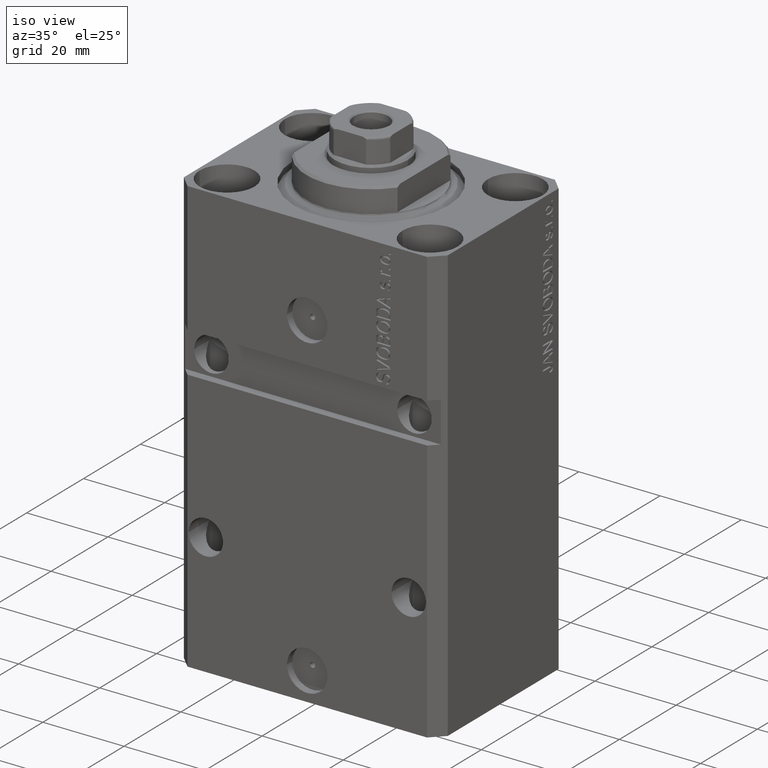
[diagram: clean part render]
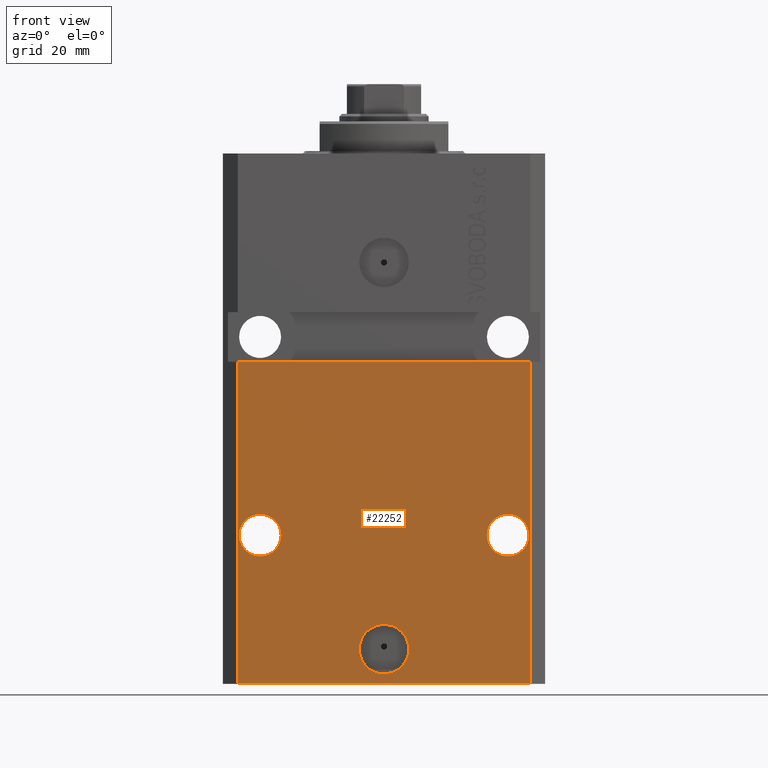
[diagram: tour spotlight — one face highlighted and labeled with its STEP entity id]
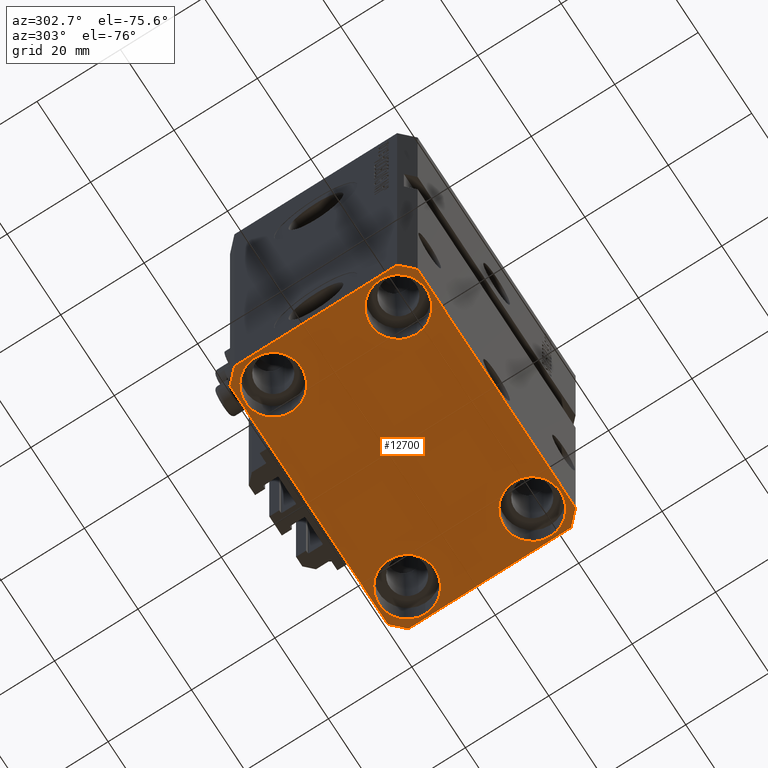
[diagram: tour spotlight — one face highlighted and labeled with its STEP entity id]
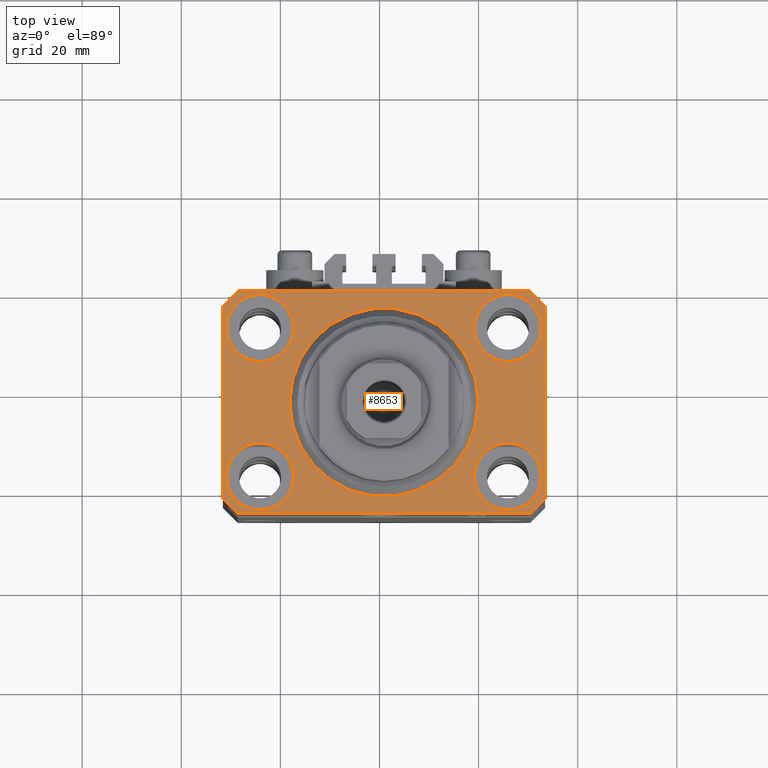
[diagram: tour spotlight — one face highlighted and labeled with its STEP entity id]
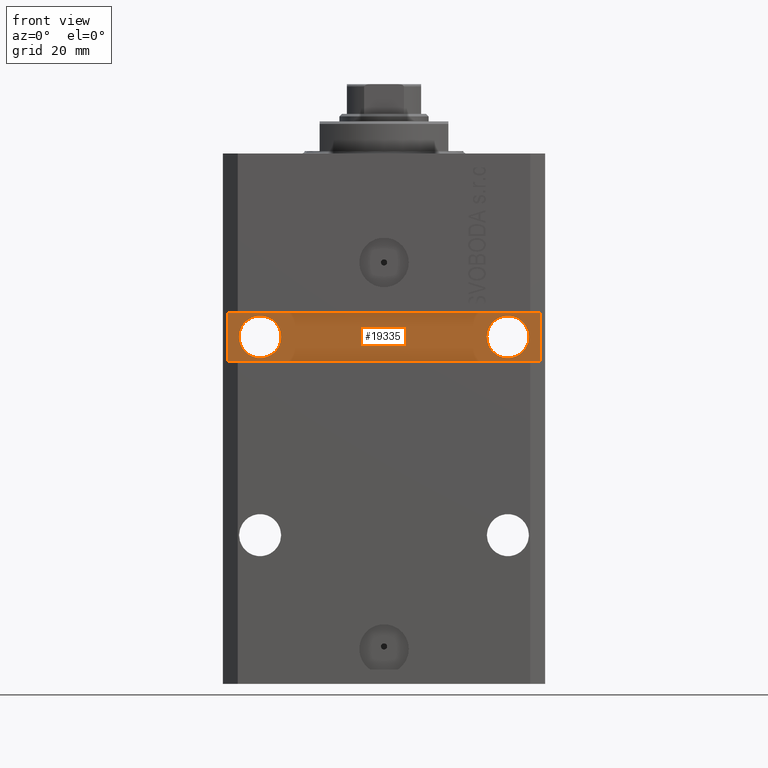
[diagram: tour spotlight — one face highlighted and labeled with its STEP entity id]
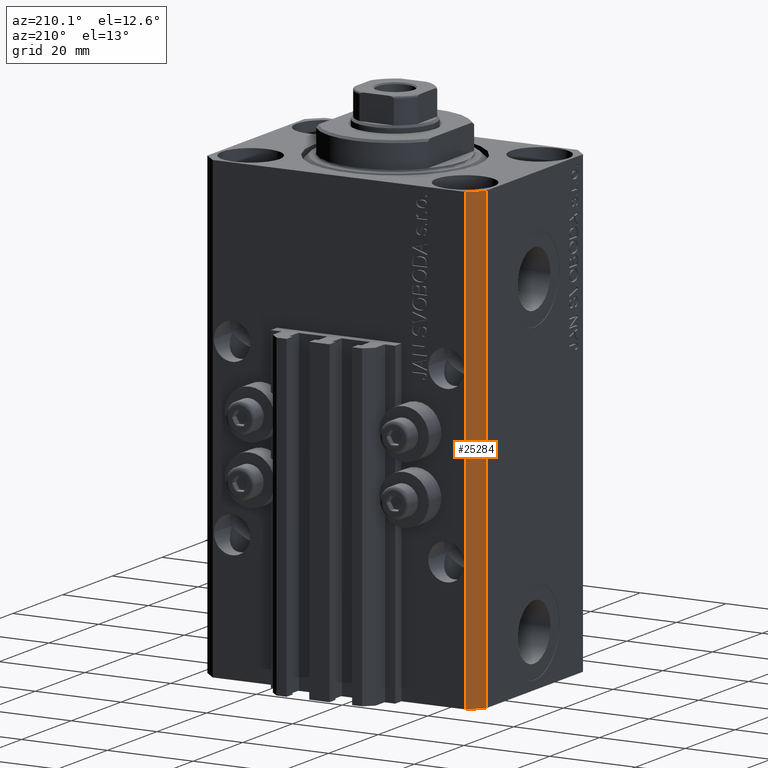
[diagram: tour spotlight — one face highlighted and labeled with its STEP entity id]
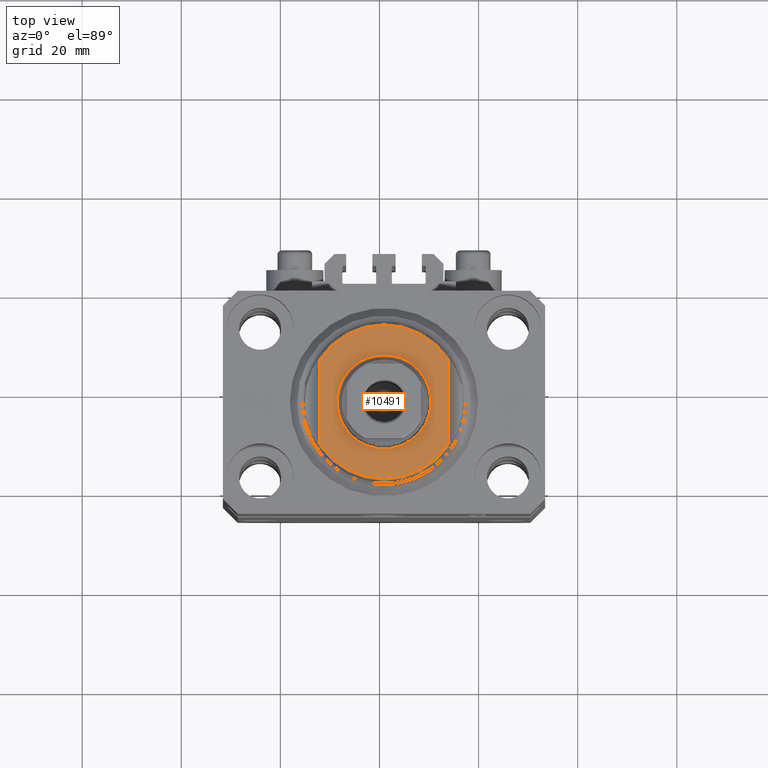
[diagram: tour spotlight — one face highlighted and labeled with its STEP entity id]
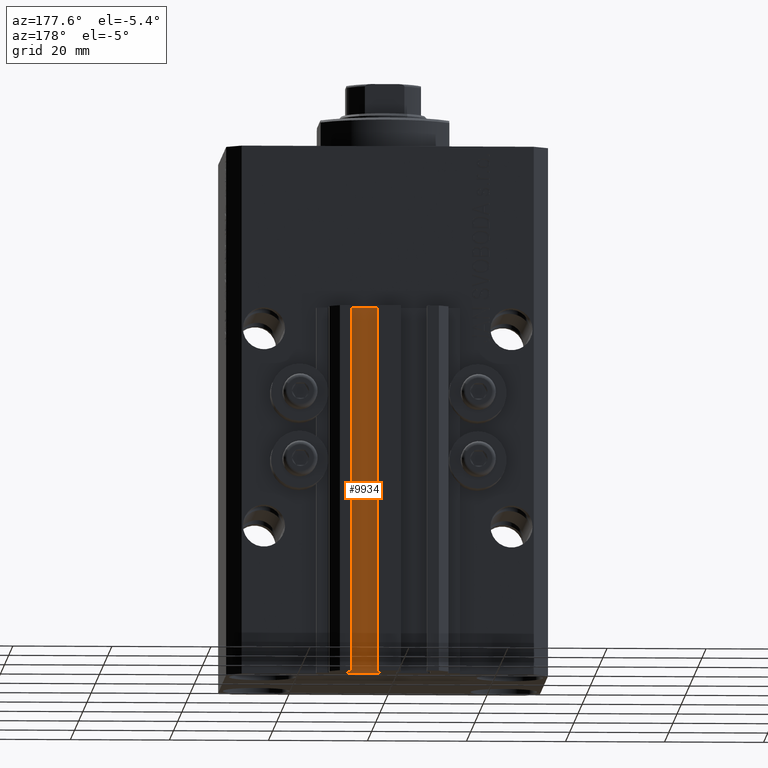
[diagram: tour spotlight — one face highlighted and labeled with its STEP entity id]
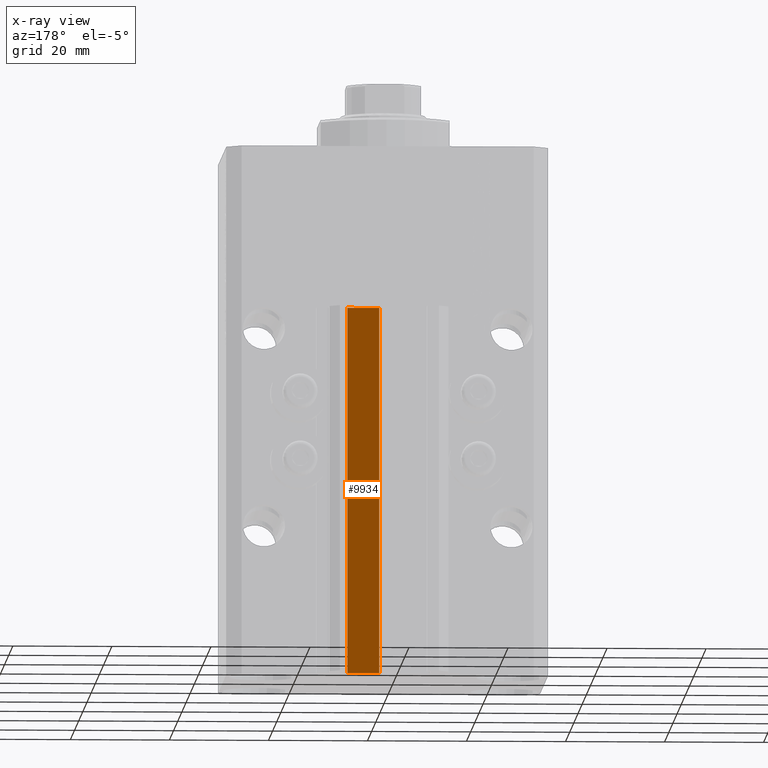
[diagram: x-ray of the same camera — body ghosted, this tour face saturated]
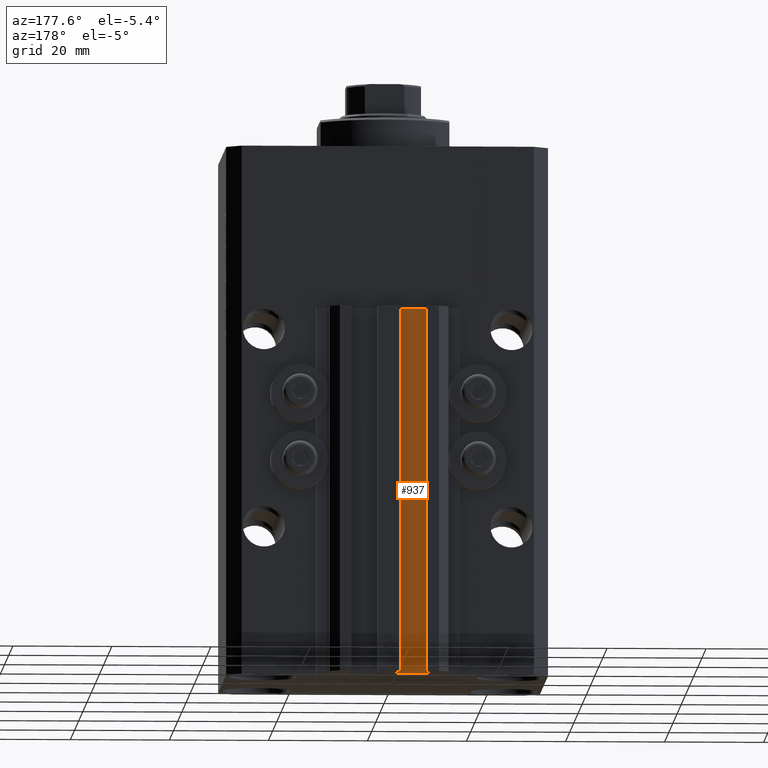
[diagram: tour spotlight — one face highlighted and labeled with its STEP entity id]
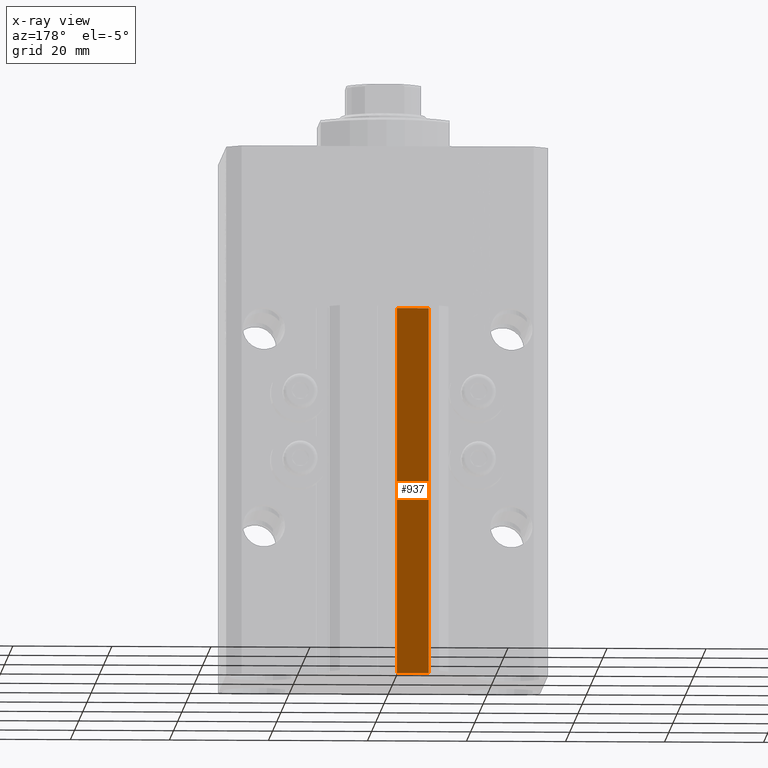
[diagram: x-ray of the same camera — body ghosted, this tour face saturated]
A machine part: a face-by-face anatomy tour. The part has 1087 B-rep faces; the first image is the clean iso view, then the 8 largest visible faces are spotlighted one at a time (largest first), each with its STEP entity span.

Face 1 — front view, entity #22252. In plain terms, the highlighted planar face has unit normal (0, -1, 0).
Definition (entity closure, byte-faithful):
#469 = AXIS2_PLACEMENT_3D ( 'NONE', #43234, #3431, #10939 ) ;
#1567 = ORIENTED_EDGE ( 'NONE', *, *, #16758, .F. ) ;
#2338 = CARTESIAN_POINT ( 'NONE',  ( 2.646188353185214061E-15, -22.49999999999949551, -99.99999999999998579 ) ) ;
#2385 = CARTESIAN_POINT ( 'NONE',  ( -29.49999999999650413, -22.49999999999949907, -107.0000000000000000 ) ) ;
#2760 = EDGE_CURVE ( 'NONE', #16689, #34827, #42251, .T. ) ;
#2822 = EDGE_CURVE ( 'NONE', #39694, #31487, #21983, .T. ) ;
#2955 = FACE_BOUND ( 'NONE', #31462, .T. ) ;
#3160 = CARTESIAN_POINT ( 'NONE',  ( -32.49999999999650413, -22.49999999999949907, -41.99999999999999289 ) ) ;
#3431 = DIRECTION ( 'NONE',  ( 1.176083712526788232E-16, -1.000000000000000000, 0.000000000000000000 ) ) ;
#3619 = VECTOR ( 'NONE', #38634, 1000.000000000000000 ) ;
#4930 = CIRCLE ( 'NONE', #17279, 5.000000000000006217 ) ;
#5645 = ORIENTED_EDGE ( 'NONE', *, *, #35060, .F. ) ;
#6008 = DIRECTION ( 'NONE',  ( -1.000000000000000000, 0.000000000000000000, 0.000000000000000000 ) ) ;
#6432 = VERTEX_POINT ( 'NONE', #8846 ) ;
#6451 = CARTESIAN_POINT ( 'NONE',  ( 5.000000000000008882, -22.49999999999949551, -99.99999999999998579 ) ) ;
#6483 = ORIENTED_EDGE ( 'NONE', *, *, #10278, .F. ) ;
#7294 = FACE_BOUND ( 'NONE', #28929, .T. ) ;
#7447 = CARTESIAN_POINT ( 'NONE',  ( 29.24999999998906475, -22.49999999999949196, -76.99999999999998579 ) ) ;
#7584 = DIRECTION ( 'NONE',  ( 0.000000000000000000, 0.000000000000000000, 1.000000000000000000 ) ) ;
#7728 = DIRECTION ( 'NONE',  ( 1.000000000000000000, 0.000000000000000000, 0.000000000000000000 ) ) ;
#7959 = CARTESIAN_POINT ( 'NONE',  ( 20.75000000001094946, -22.49999999999949196, -76.99999999999998579 ) ) ;
#8791 = ORIENTED_EDGE ( 'NONE', *, *, #14960, .F. ) ;
#8846 = CARTESIAN_POINT ( 'NONE',  ( -29.24999999997659472, -22.49999999999949907, -76.99999999999998579 ) ) ;
#9805 = VECTOR ( 'NONE', #14978, 1000.000000000000000 ) ;
#10069 = DIRECTION ( 'NONE',  ( 1.000000000000000000, 0.000000000000000000, 0.000000000000000000 ) ) ;
#10278 = EDGE_CURVE ( 'NONE', #35543, #20378, #4930, .T. ) ;
#10579 = AXIS2_PLACEMENT_3D ( 'NONE', #36361, #46736, #6008 ) ;
#10939 = DIRECTION ( 'NONE',  ( -1.000000000000000000, 0.000000000000000000, 0.000000000000000000 ) ) ;
#12299 = AXIS2_PLACEMENT_3D ( 'NONE', #25866, #33326, #39601 ) ;
#12751 = AXIS2_PLACEMENT_3D ( 'NONE', #2338, #45975, #10069 ) ;
#13405 = CARTESIAN_POINT ( 'NONE',  ( 29.49999999999650413, -22.49999999999949196, -107.0000000000000000 ) ) ;
#13423 = ORIENTED_EDGE ( 'NONE', *, *, #37572, .F. ) ;
#13825 = DIRECTION ( 'NONE',  ( 1.000000000000000000, 1.176083712526788232E-16, 0.000000000000000000 ) ) ;
#14288 = FACE_OUTER_BOUND ( 'NONE', #45470, .T. ) ;
#14960 = EDGE_CURVE ( 'NONE', #6432, #16162, #42051, .T. ) ;
#14978 = DIRECTION ( 'NONE',  ( 1.000000000000000000, 1.067522139062765303E-16, 1.067522139062765303E-16 ) ) ;
#15154 = LINE ( 'NONE', #16111, #37371 ) ;
#16019 = CARTESIAN_POINT ( 'NONE',  ( -29.49999999999650413, -22.49999999999949907, -107.0000000000000000 ) ) ;
#16039 = CARTESIAN_POINT ( 'NONE',  ( -20.75000000002340883, -22.49999999999949907, -76.99999999999998579 ) ) ;
#16111 = CARTESIAN_POINT ( 'NONE',  ( 29.49999999999650413, -22.49999999999949196, -107.0000000000000000 ) ) ;
#16162 = VERTEX_POINT ( 'NONE', #16039 ) ;
#16480 = VERTEX_POINT ( 'NONE', #7959 ) ;
#16503 = ORIENTED_EDGE ( 'NONE', *, *, #2760, .T. ) ;
#16689 = VERTEX_POINT ( 'NONE', #2385 ) ;
#16691 = CIRCLE ( 'NONE', #10579, 4.249999999976592058 ) ;
#16758 = EDGE_CURVE ( 'NONE', #16162, #6432, #16691, .T. ) ;
#17279 = AXIS2_PLACEMENT_3D ( 'NONE', #19061, #29657, #7728 ) ;
#17676 = DIRECTION ( 'NONE',  ( 1.176083712526788232E-16, -1.000000000000000000, 0.000000000000000000 ) ) ;
#18312 = ORIENTED_EDGE ( 'NONE', *, *, #2822, .F. ) ;
#18416 = AXIS2_PLACEMENT_3D ( 'NONE', #32120, #17676, #13825 ) ;
#19061 = CARTESIAN_POINT ( 'NONE',  ( 2.646188353185214061E-15, -22.49999999999949551, -99.99999999999998579 ) ) ;
#19664 = VERTEX_POINT ( 'NONE', #7447 ) ;
#19725 = DIRECTION ( 'NONE',  ( 0.000000000000000000, 0.000000000000000000, 1.000000000000000000 ) ) ;
#20378 = VERTEX_POINT ( 'NONE', #42083 ) ;
#20467 = CIRCLE ( 'NONE', #12751, 5.000000000000006217 ) ;
#21061 = FACE_BOUND ( 'NONE', #45485, .T. ) ;
#21983 = LINE ( 'NONE', #3160, #9805 ) ;
#22211 = CIRCLE ( 'NONE', #42222, 4.249999999989057642 ) ;
#22252 = ADVANCED_FACE ( 'NONE', ( #7294, #21061, #2955, #14288 ), #35747, .T. ) ;
#23177 = EDGE_CURVE ( 'NONE', #19664, #16480, #22211, .T. ) ;
#23941 = CARTESIAN_POINT ( 'NONE',  ( -29.49999999999650413, -22.49999999999949907, -107.0000000000000000 ) ) ;
#25866 = CARTESIAN_POINT ( 'NONE',  ( 25.00000000000000711, -22.49999999999949196, -76.99999999999998579 ) ) ;
#27183 = EDGE_CURVE ( 'NONE', #16480, #19664, #35376, .T. ) ;
#28833 = VECTOR ( 'NONE', #7584, 1000.000000000000000 ) ;
#28929 = EDGE_LOOP ( 'NONE', ( #6483, #13423 ) ) ;
#29657 = DIRECTION ( 'NONE',  ( 1.176083712526788232E-16, -1.000000000000000000, 0.000000000000000000 ) ) ;
#31462 = EDGE_LOOP ( 'NONE', ( #1567, #8791 ) ) ;
#31487 = VERTEX_POINT ( 'NONE', #32460 ) ;
#31955 = DIRECTION ( 'NONE',  ( 1.176083712526788232E-16, -1.000000000000000000, 0.000000000000000000 ) ) ;
#32106 = ORIENTED_EDGE ( 'NONE', *, *, #27183, .F. ) ;
#32120 = CARTESIAN_POINT ( 'NONE',  ( -29.49999999999650413, -22.49999999999949907, -107.0000000000000000 ) ) ;
#32460 = CARTESIAN_POINT ( 'NONE',  ( 29.49999999999650058, -22.49999999999949196, -41.99999999999998579 ) ) ;
#33326 = DIRECTION ( 'NONE',  ( 1.176083712526788232E-16, -1.000000000000000000, 0.000000000000000000 ) ) ;
#34827 = VERTEX_POINT ( 'NONE', #13405 ) ;
#35060 = EDGE_CURVE ( 'NONE', #16689, #39694, #37713, .T. ) ;
#35376 = CIRCLE ( 'NONE', #12299, 4.249999999989057642 ) ;
#35543 = VERTEX_POINT ( 'NONE', #6451 ) ;
#35747 = PLANE ( 'NONE',  #18416 ) ;
#36046 = DIRECTION ( 'NONE',  ( 1.000000000000000000, 0.000000000000000000, 0.000000000000000000 ) ) ;
#36361 = CARTESIAN_POINT ( 'NONE',  ( -25.00000000000000000, -22.49999999999949907, -76.99999999999998579 ) ) ;
#37188 = ORIENTED_EDGE ( 'NONE', *, *, #37413, .T. ) ;
#37371 = VECTOR ( 'NONE', #19725, 1000.000000000000000 ) ;
#37413 = EDGE_CURVE ( 'NONE', #34827, #31487, #15154, .T. ) ;
#37572 = EDGE_CURVE ( 'NONE', #20378, #35543, #20467, .T. ) ;
#37713 = LINE ( 'NONE', #16019, #28833 ) ;
#38634 = DIRECTION ( 'NONE',  ( 1.000000000000000000, 1.176083712526788232E-16, 0.000000000000000000 ) ) ;
#39601 = DIRECTION ( 'NONE',  ( 1.000000000000000000, 0.000000000000000000, 0.000000000000000000 ) ) ;
#39694 = VERTEX_POINT ( 'NONE', #44764 ) ;
#42051 = CIRCLE ( 'NONE', #469, 4.249999999976592058 ) ;
#42083 = CARTESIAN_POINT ( 'NONE',  ( -5.000000000000003553, -22.49999999999949551, -99.99999999999998579 ) ) ;
#42222 = AXIS2_PLACEMENT_3D ( 'NONE', #46202, #31955, #36046 ) ;
#42251 = LINE ( 'NONE', #23941, #3619 ) ;
#43234 = CARTESIAN_POINT ( 'NONE',  ( -25.00000000000000000, -22.49999999999949907, -76.99999999999998579 ) ) ;
#44764 = CARTESIAN_POINT ( 'NONE',  ( -29.49999999999650413, -22.49999999999949907, -41.99999999999999289 ) ) ;
#45470 = EDGE_LOOP ( 'NONE', ( #18312, #5645, #16503, #37188 ) ) ;
#45485 = EDGE_LOOP ( 'NONE', ( #47050, #32106 ) ) ;
#45975 = DIRECTION ( 'NONE',  ( 1.176083712526788232E-16, -1.000000000000000000, 0.000000000000000000 ) ) ;
#46202 = CARTESIAN_POINT ( 'NONE',  ( 25.00000000000000711, -22.49999999999949196, -76.99999999999998579 ) ) ;
#46736 = DIRECTION ( 'NONE',  ( 1.176083712526788232E-16, -1.000000000000000000, 0.000000000000000000 ) ) ;
#47050 = ORIENTED_EDGE ( 'NONE', *, *, #23177, .F. ) ;

Face 2 — auxiliary view, entity #12700. In plain terms, the highlighted planar face has unit normal (0, 0, 1).
Definition (entity closure, byte-faithful):
#403 = AXIS2_PLACEMENT_3D ( 'NONE', #33123, #39630, #3217 ) ;
#1221 = CARTESIAN_POINT ( 'NONE',  ( 29.49999999999707967, 22.49999999999951328, -107.0000000000000000 ) ) ;
#2344 = VERTEX_POINT ( 'NONE', #4003 ) ;
#2385 = CARTESIAN_POINT ( 'NONE',  ( -29.49999999999650413, -22.49999999999949907, -107.0000000000000000 ) ) ;
#2760 = EDGE_CURVE ( 'NONE', #16689, #34827, #42251, .T. ) ;
#3144 = CARTESIAN_POINT ( 'NONE',  ( 31.74999999995845101, 15.00000000000000888, -107.0000000000000000 ) ) ;
#3156 = ORIENTED_EDGE ( 'NONE', *, *, #2760, .F. ) ;
#3217 = DIRECTION ( 'NONE',  ( 1.000000000000000000, 0.000000000000000000, -0.000000000000000000 ) ) ;
#3227 = DIRECTION ( 'NONE',  ( 1.334402673828349134E-14, 1.000000000000000000, 0.000000000000000000 ) ) ;
#3427 = DIRECTION ( 'NONE',  ( 1.000000000000000000, 0.000000000000000000, 0.000000000000000000 ) ) ;
#3574 = ORIENTED_EDGE ( 'NONE', *, *, #4904, .T. ) ;
#3619 = VECTOR ( 'NONE', #38634, 1000.000000000000000 ) ;
#3725 = ORIENTED_EDGE ( 'NONE', *, *, #39978, .F. ) ;
#4003 = CARTESIAN_POINT ( 'NONE',  ( 31.74999999997746869, -15.00000000000000000, -107.0000000000000000 ) ) ;
#4022 = DIRECTION ( 'NONE',  ( -0.000000000000000000, -0.000000000000000000, 1.000000000000000000 ) ) ;
#4047 = DIRECTION ( 'NONE',  ( -0.000000000000000000, -0.000000000000000000, 1.000000000000000000 ) ) ;
#4431 = LINE ( 'NONE', #33851, #12990 ) ;
#4904 = EDGE_CURVE ( 'NONE', #24654, #7535, #36829, .T. ) ;
#5212 = AXIS2_PLACEMENT_3D ( 'NONE', #13570, #32588, #46828 ) ;
#5567 = LINE ( 'NONE', #1221, #16319 ) ;
#6077 = ORIENTED_EDGE ( 'NONE', *, *, #10646, .T. ) ;
#6161 = LINE ( 'NONE', #32159, #24419 ) ;
#6836 = FACE_BOUND ( 'NONE', #45916, .T. ) ;
#7012 = CIRCLE ( 'NONE', #33967, 6.750000000022533087 ) ;
#7319 = FACE_BOUND ( 'NONE', #41782, .T. ) ;
#7535 = VERTEX_POINT ( 'NONE', #24463 ) ;
#7599 = EDGE_CURVE ( 'NONE', #23980, #42069, #36509, .T. ) ;
#8478 = ORIENTED_EDGE ( 'NONE', *, *, #27210, .T. ) ;
#8597 = DIRECTION ( 'NONE',  ( 1.000000000000000000, 0.000000000000000000, 0.000000000000000000 ) ) ;
#8884 = DIRECTION ( 'NONE',  ( 1.000000000000000000, 0.000000000000000000, 0.000000000000000000 ) ) ;
#9198 = DIRECTION ( 'NONE',  ( -1.000000000000000000, -2.352167425053553784E-16, 0.000000000000000000 ) ) ;
#9343 = CIRCLE ( 'NONE', #40878, 6.750000000022533087 ) ;
#9541 = ORIENTED_EDGE ( 'NONE', *, *, #11482, .F. ) ;
#10060 = ORIENTED_EDGE ( 'NONE', *, *, #44376, .F. ) ;
#10245 = FACE_BOUND ( 'NONE', #32015, .T. ) ;
#10580 = DIRECTION ( 'NONE',  ( 1.000000000000000000, 0.000000000000000000, 0.000000000000000000 ) ) ;
#10646 = EDGE_CURVE ( 'NONE', #25746, #2344, #30357, .T. ) ;
#10751 = DIRECTION ( 'NONE',  ( 1.000000000000000000, 0.000000000000000000, 0.000000000000000000 ) ) ;
#10820 = CARTESIAN_POINT ( 'NONE',  ( -31.75000000004154899, -15.00000000000000000, -107.0000000000000000 ) ) ;
#10872 = ORIENTED_EDGE ( 'NONE', *, *, #47503, .T. ) ;
#11178 = VECTOR ( 'NONE', #18883, 1000.000000000000000 ) ;
#11267 = CARTESIAN_POINT ( 'NONE',  ( 32.49999999999702993, 19.49999999999945999, -107.0000000000000000 ) ) ;
#11412 = DIRECTION ( 'NONE',  ( -0.000000000000000000, -0.000000000000000000, 1.000000000000000000 ) ) ;
#11482 = EDGE_CURVE ( 'NONE', #34827, #13408, #13893, .T. ) ;
#11710 = EDGE_LOOP ( 'NONE', ( #39499, #3574 ) ) ;
#12700 = ADVANCED_FACE ( 'NONE', ( #6836, #7319, #22041, #10245, #28770 ), #24931, .F. ) ;
#12742 = CARTESIAN_POINT ( 'NONE',  ( -25.00000000000000355, 15.00000000000000000, -107.0000000000000000 ) ) ;
#12990 = VECTOR ( 'NONE', #22769, 1000.000000000000114 ) ;
#13405 = CARTESIAN_POINT ( 'NONE',  ( 29.49999999999650413, -22.49999999999949196, -107.0000000000000000 ) ) ;
#13408 = VERTEX_POINT ( 'NONE', #36022 ) ;
#13570 = CARTESIAN_POINT ( 'NONE',  ( 24.99999999999999645, 15.00000000000000888, -107.0000000000000000 ) ) ;
#13627 = CARTESIAN_POINT ( 'NONE',  ( 25.00000000000000355, -15.00000000000000000, -107.0000000000000000 ) ) ;
#13893 = LINE ( 'NONE', #29970, #11178 ) ;
#14182 = ORIENTED_EDGE ( 'NONE', *, *, #30199, .T. ) ;
#15600 = DIRECTION ( 'NONE',  ( 1.000000000000000000, 0.000000000000000000, 0.000000000000000000 ) ) ;
#15739 = CARTESIAN_POINT ( 'NONE',  ( 29.49999999999707967, 22.49999999999951328, -107.0000000000000000 ) ) ;
#15968 = ORIENTED_EDGE ( 'NONE', *, *, #32437, .F. ) ;
#16319 = VECTOR ( 'NONE', #9198, 1000.000000000000000 ) ;
#16689 = VERTEX_POINT ( 'NONE', #2385 ) ;
#16781 = CARTESIAN_POINT ( 'NONE',  ( -29.49999999999650413, 22.49999999999949907, -107.0000000000000000 ) ) ;
#16838 = AXIS2_PLACEMENT_3D ( 'NONE', #13627, #32168, #10751 ) ;
#17531 = CARTESIAN_POINT ( 'NONE',  ( -18.24999999997747224, 15.00000000000000000, -107.0000000000000000 ) ) ;
#18883 = DIRECTION ( 'NONE',  ( 0.7071067811865483499, 0.7071067811865466846, 0.000000000000000000 ) ) ;
#19171 = AXIS2_PLACEMENT_3D ( 'NONE', #25964, #4022, #15600 ) ;
#20628 = LINE ( 'NONE', #46410, #44016 ) ;
#21525 = ORIENTED_EDGE ( 'NONE', *, *, #7599, .T. ) ;
#22017 = CARTESIAN_POINT ( 'NONE',  ( -32.49999999999650413, -19.49999999999949907, -107.0000000000000000 ) ) ;
#22041 = FACE_BOUND ( 'NONE', #11710, .T. ) ;
#22618 = EDGE_LOOP ( 'NONE', ( #15968, #31025, #47282, #9541, #3156, #10060, #3725, #27645 ) ) ;
#22769 = DIRECTION ( 'NONE',  ( 0.7071067811865474617, -0.7071067811865474617, 0.000000000000000000 ) ) ;
#23941 = CARTESIAN_POINT ( 'NONE',  ( -29.49999999999650413, -22.49999999999949907, -107.0000000000000000 ) ) ;
#23980 = VERTEX_POINT ( 'NONE', #31733 ) ;
#24419 = VECTOR ( 'NONE', #46644, 1000.000000000000000 ) ;
#24435 = VERTEX_POINT ( 'NONE', #15739 ) ;
#24457 = CIRCLE ( 'NONE', #5212, 6.749999999958452790 ) ;
#24463 = CARTESIAN_POINT ( 'NONE',  ( 18.25000000004154543, 15.00000000000000888, -107.0000000000000000 ) ) ;
#24608 = CARTESIAN_POINT ( 'NONE',  ( -29.49999999999650413, 22.49999999999949907, -107.0000000000000000 ) ) ;
#24654 = VERTEX_POINT ( 'NONE', #3144 ) ;
#24743 = VECTOR ( 'NONE', #3227, 1000.000000000000000 ) ;
#24931 = PLANE ( 'NONE',  #403 ) ;
#25104 = EDGE_CURVE ( 'NONE', #30262, #33387, #28908, .T. ) ;
#25407 = DIRECTION ( 'NONE',  ( -0.000000000000000000, -0.000000000000000000, 1.000000000000000000 ) ) ;
#25746 = VERTEX_POINT ( 'NONE', #26862 ) ;
#25964 = CARTESIAN_POINT ( 'NONE',  ( 24.99999999999999645, 15.00000000000000888, -107.0000000000000000 ) ) ;
#26098 = VECTOR ( 'NONE', #42678, 1000.000000000000114 ) ;
#26862 = CARTESIAN_POINT ( 'NONE',  ( 18.25000000002253842, -15.00000000000000000, -107.0000000000000000 ) ) ;
#27210 = EDGE_CURVE ( 'NONE', #42069, #23980, #33067, .T. ) ;
#27645 = ORIENTED_EDGE ( 'NONE', *, *, #25104, .F. ) ;
#27683 = DIRECTION ( 'NONE',  ( -0.000000000000000000, -0.000000000000000000, 1.000000000000000000 ) ) ;
#28770 = FACE_OUTER_BOUND ( 'NONE', #22618, .T. ) ;
#28908 = LINE ( 'NONE', #24608, #26098 ) ;
#29215 = AXIS2_PLACEMENT_3D ( 'NONE', #44428, #11412, #3427 ) ;
#29599 = CARTESIAN_POINT ( 'NONE',  ( 25.00000000000000355, -15.00000000000000000, -107.0000000000000000 ) ) ;
#29952 = EDGE_CURVE ( 'NONE', #36678, #35270, #9343, .T. ) ;
#29970 = CARTESIAN_POINT ( 'NONE',  ( 29.49999999999650413, -22.49999999999949196, -107.0000000000000000 ) ) ;
#30199 = EDGE_CURVE ( 'NONE', #35270, #36678, #7012, .T. ) ;
#30262 = VERTEX_POINT ( 'NONE', #16781 ) ;
#30357 = CIRCLE ( 'NONE', #31110, 6.749999999977465137 ) ;
#30810 = EDGE_CURVE ( 'NONE', #13408, #31643, #36258, .T. ) ;
#30844 = EDGE_CURVE ( 'NONE', #31643, #24435, #20628, .T. ) ;
#31025 = ORIENTED_EDGE ( 'NONE', *, *, #30844, .F. ) ;
#31110 = AXIS2_PLACEMENT_3D ( 'NONE', #29599, #4047, #10580 ) ;
#31447 = CARTESIAN_POINT ( 'NONE',  ( -25.00000000000000355, -15.00000000000000000, -107.0000000000000000 ) ) ;
#31643 = VERTEX_POINT ( 'NONE', #11267 ) ;
#31733 = CARTESIAN_POINT ( 'NONE',  ( -18.24999999995845812, -15.00000000000000000, -107.0000000000000000 ) ) ;
#31926 = DIRECTION ( 'NONE',  ( -0.7071067811865352493, 0.7071067811865597852, 0.000000000000000000 ) ) ;
#32015 = EDGE_LOOP ( 'NONE', ( #14182, #41913 ) ) ;
#32159 = CARTESIAN_POINT ( 'NONE',  ( -32.49999999999650413, 19.49999999999949907, -107.0000000000000000 ) ) ;
#32168 = DIRECTION ( 'NONE',  ( -0.000000000000000000, -0.000000000000000000, 1.000000000000000000 ) ) ;
#32437 = EDGE_CURVE ( 'NONE', #24435, #30262, #5567, .T. ) ;
#32588 = DIRECTION ( 'NONE',  ( -0.000000000000000000, -0.000000000000000000, 1.000000000000000000 ) ) ;
#33067 = CIRCLE ( 'NONE', #29215, 6.750000000041541881 ) ;
#33123 = CARTESIAN_POINT ( 'NONE',  ( 0.000000000000000000, 0.000000000000000000, -107.0000000000000000 ) ) ;
#33387 = VERTEX_POINT ( 'NONE', #34505 ) ;
#33851 = CARTESIAN_POINT ( 'NONE',  ( -32.49999999999650413, -19.49999999999949907, -107.0000000000000000 ) ) ;
#33967 = AXIS2_PLACEMENT_3D ( 'NONE', #45703, #45945, #8597 ) ;
#34505 = CARTESIAN_POINT ( 'NONE',  ( -32.49999999999650413, 19.49999999999949907, -107.0000000000000000 ) ) ;
#34827 = VERTEX_POINT ( 'NONE', #13405 ) ;
#35270 = VERTEX_POINT ( 'NONE', #38429 ) ;
#36022 = CARTESIAN_POINT ( 'NONE',  ( 32.49999999999651124, -19.49999999999949196, -107.0000000000000000 ) ) ;
#36209 = VERTEX_POINT ( 'NONE', #22017 ) ;
#36258 = LINE ( 'NONE', #39640, #24743 ) ;
#36509 = CIRCLE ( 'NONE', #44236, 6.750000000041541881 ) ;
#36678 = VERTEX_POINT ( 'NONE', #17531 ) ;
#36829 = CIRCLE ( 'NONE', #19171, 6.749999999958452790 ) ;
#37619 = CIRCLE ( 'NONE', #16838, 6.749999999977465137 ) ;
#38429 = CARTESIAN_POINT ( 'NONE',  ( -31.75000000002253842, 15.00000000000000000, -107.0000000000000000 ) ) ;
#38634 = DIRECTION ( 'NONE',  ( 1.000000000000000000, 1.176083712526788232E-16, 0.000000000000000000 ) ) ;
#39499 = ORIENTED_EDGE ( 'NONE', *, *, #41397, .T. ) ;
#39630 = DIRECTION ( 'NONE',  ( 0.000000000000000000, 0.000000000000000000, 1.000000000000000000 ) ) ;
#39640 = CARTESIAN_POINT ( 'NONE',  ( 32.49999999999651124, -19.49999999999949196, -107.0000000000000000 ) ) ;
#39978 = EDGE_CURVE ( 'NONE', #33387, #36209, #6161, .T. ) ;
#40336 = DIRECTION ( 'NONE',  ( 1.000000000000000000, 0.000000000000000000, 0.000000000000000000 ) ) ;
#40878 = AXIS2_PLACEMENT_3D ( 'NONE', #12742, #27683, #8884 ) ;
#41397 = EDGE_CURVE ( 'NONE', #7535, #24654, #24457, .T. ) ;
#41782 = EDGE_LOOP ( 'NONE', ( #6077, #10872 ) ) ;
#41913 = ORIENTED_EDGE ( 'NONE', *, *, #29952, .T. ) ;
#42069 = VERTEX_POINT ( 'NONE', #10820 ) ;
#42251 = LINE ( 'NONE', #23941, #3619 ) ;
#42678 = DIRECTION ( 'NONE',  ( -0.7071067811865474617, -0.7071067811865474617, 0.000000000000000000 ) ) ;
#44016 = VECTOR ( 'NONE', #31926, 1000.000000000000000 ) ;
#44236 = AXIS2_PLACEMENT_3D ( 'NONE', #31447, #25407, #40336 ) ;
#44376 = EDGE_CURVE ( 'NONE', #36209, #16689, #4431, .T. ) ;
#44428 = CARTESIAN_POINT ( 'NONE',  ( -25.00000000000000355, -15.00000000000000000, -107.0000000000000000 ) ) ;
#45703 = CARTESIAN_POINT ( 'NONE',  ( -25.00000000000000355, 15.00000000000000000, -107.0000000000000000 ) ) ;
#45916 = EDGE_LOOP ( 'NONE', ( #8478, #21525 ) ) ;
#45945 = DIRECTION ( 'NONE',  ( -0.000000000000000000, -0.000000000000000000, 1.000000000000000000 ) ) ;
#46410 = CARTESIAN_POINT ( 'NONE',  ( 32.49999999999702993, 19.49999999999945999, -107.0000000000000000 ) ) ;
#46644 = DIRECTION ( 'NONE',  ( 0.000000000000000000, -1.000000000000000000, 0.000000000000000000 ) ) ;
#46828 = DIRECTION ( 'NONE',  ( 1.000000000000000000, 0.000000000000000000, 0.000000000000000000 ) ) ;
#47282 = ORIENTED_EDGE ( 'NONE', *, *, #30810, .F. ) ;
#47503 = EDGE_CURVE ( 'NONE', #2344, #25746, #37619, .T. ) ;

Face 3 — top view, entity #8653. In plain terms, the highlighted planar face has unit normal (0, 0, 1).
Definition (entity closure, byte-faithful):
#773 = DIRECTION ( 'NONE',  ( 1.000000000000000000, 1.176083712526788232E-16, 0.000000000000000000 ) ) ;
#1098 = DIRECTION ( 'NONE',  ( 1.000000000000000000, 0.000000000000000000, 0.000000000000000000 ) ) ;
#1394 = VECTOR ( 'NONE', #31495, 1000.000000000000114 ) ;
#1618 = CARTESIAN_POINT ( 'NONE',  ( 32.49999999999651124, -19.49999999999949196, 0.000000000000000000 ) ) ;
#1797 = EDGE_CURVE ( 'NONE', #47575, #35236, #45173, .T. ) ;
#1819 = FACE_BOUND ( 'NONE', #28076, .T. ) ;
#2060 = DIRECTION ( 'NONE',  ( 0.000000000000000000, 0.000000000000000000, 1.000000000000000000 ) ) ;
#2248 = DIRECTION ( 'NONE',  ( 0.000000000000000000, 0.000000000000000000, 1.000000000000000000 ) ) ;
#2536 = CARTESIAN_POINT ( 'NONE',  ( 18.25000000004154543, 15.00000000000000888, 0.000000000000000000 ) ) ;
#2618 = ORIENTED_EDGE ( 'NONE', *, *, #23161, .T. ) ;
#3082 = CIRCLE ( 'NONE', #36188, 6.750000000022533087 ) ;
#3206 = DIRECTION ( 'NONE',  ( 0.000000000000000000, 0.000000000000000000, 1.000000000000000000 ) ) ;
#3694 = CARTESIAN_POINT ( 'NONE',  ( -19.00000000000000000, 2.326828918379970970E-15, 0.000000000000000000 ) ) ;
#4236 = AXIS2_PLACEMENT_3D ( 'NONE', #41632, #2060, #31008 ) ;
#4932 = DIRECTION ( 'NONE',  ( 0.000000000000000000, 0.000000000000000000, 1.000000000000000000 ) ) ;
#5349 = VERTEX_POINT ( 'NONE', #8170 ) ;
#5561 = DIRECTION ( 'NONE',  ( 0.000000000000000000, 0.000000000000000000, 1.000000000000000000 ) ) ;
#6630 = LINE ( 'NONE', #16791, #1394 ) ;
#7001 = CARTESIAN_POINT ( 'NONE',  ( -25.00000000000000355, 15.00000000000000000, 0.000000000000000000 ) ) ;
#7526 = LINE ( 'NONE', #45128, #46858 ) ;
#7741 = AXIS2_PLACEMENT_3D ( 'NONE', #42451, #5561, #34734 ) ;
#8170 = CARTESIAN_POINT ( 'NONE',  ( -31.75000000002253842, 15.00000000000000000, 0.000000000000000000 ) ) ;
#8653 = ADVANCED_FACE ( 'NONE', ( #12690, #1819, #23317, #19702, #45486, #16318 ), #46431, .T. ) ;
#9174 = ORIENTED_EDGE ( 'NONE', *, *, #16052, .T. ) ;
#9573 = ORIENTED_EDGE ( 'NONE', *, *, #27481, .F. ) ;
#9757 = VECTOR ( 'NONE', #28082, 1000.000000000000000 ) ;
#9807 = EDGE_CURVE ( 'NONE', #45161, #28462, #41877, .T. ) ;
#9935 = CIRCLE ( 'NONE', #12243, 6.749999999958452790 ) ;
#10248 = CARTESIAN_POINT ( 'NONE',  ( 19.00000000000000000, 0.000000000000000000, 0.000000000000000000 ) ) ;
#10288 = LINE ( 'NONE', #38974, #32822 ) ;
#11190 = DIRECTION ( 'NONE',  ( 1.000000000000000000, 0.000000000000000000, 0.000000000000000000 ) ) ;
#11309 = LINE ( 'NONE', #18536, #31139 ) ;
#12115 = EDGE_CURVE ( 'NONE', #12219, #20772, #11309, .T. ) ;
#12219 = VERTEX_POINT ( 'NONE', #1618 ) ;
#12229 = CARTESIAN_POINT ( 'NONE',  ( -32.49999999999650413, 19.49999999999949907, 0.000000000000000000 ) ) ;
#12243 = AXIS2_PLACEMENT_3D ( 'NONE', #19692, #20168, #13400 ) ;
#12493 = AXIS2_PLACEMENT_3D ( 'NONE', #26910, #41130, #33420 ) ;
#12546 = DIRECTION ( 'NONE',  ( 1.000000000000000000, 0.000000000000000000, 0.000000000000000000 ) ) ;
#12690 = FACE_BOUND ( 'NONE', #41562, .T. ) ;
#12883 = VERTEX_POINT ( 'NONE', #18778 ) ;
#13163 = LINE ( 'NONE', #13391, #9757 ) ;
#13391 = CARTESIAN_POINT ( 'NONE',  ( 29.49999999999707967, 22.49999999999951328, 0.000000000000000000 ) ) ;
#13400 = DIRECTION ( 'NONE',  ( 1.000000000000000000, 0.000000000000000000, 0.000000000000000000 ) ) ;
#14070 = CARTESIAN_POINT ( 'NONE',  ( 24.99999999999999645, 15.00000000000000888, 0.000000000000000000 ) ) ;
#14537 = VECTOR ( 'NONE', #36742, 1000.000000000000000 ) ;
#14715 = CARTESIAN_POINT ( 'NONE',  ( -29.49999999999650413, 22.49999999999949907, 0.000000000000000000 ) ) ;
#14742 = ORIENTED_EDGE ( 'NONE', *, *, #29430, .F. ) ;
#14868 = CARTESIAN_POINT ( 'NONE',  ( -18.24999999995846167, -15.00000000000000000, 0.000000000000000000 ) ) ;
#14908 = ORIENTED_EDGE ( 'NONE', *, *, #17265, .F. ) ;
#16052 = EDGE_CURVE ( 'NONE', #23451, #29365, #10288, .T. ) ;
#16257 = CARTESIAN_POINT ( 'NONE',  ( 31.74999999995845101, 15.00000000000000888, 0.000000000000000000 ) ) ;
#16318 = FACE_OUTER_BOUND ( 'NONE', #45473, .T. ) ;
#16732 = CIRCLE ( 'NONE', #19797, 6.750000000041541881 ) ;
#16791 = CARTESIAN_POINT ( 'NONE',  ( -29.49999999999650413, 22.49999999999949907, 0.000000000000000000 ) ) ;
#17265 = EDGE_CURVE ( 'NONE', #26287, #46442, #16732, .T. ) ;
#17395 = ORIENTED_EDGE ( 'NONE', *, *, #39797, .T. ) ;
#18264 = ORIENTED_EDGE ( 'NONE', *, *, #12115, .T. ) ;
#18283 = CIRCLE ( 'NONE', #33667, 6.749999999977465137 ) ;
#18536 = CARTESIAN_POINT ( 'NONE',  ( 32.49999999999651124, -19.49999999999949196, 0.000000000000000000 ) ) ;
#18745 = DIRECTION ( 'NONE',  ( 0.000000000000000000, -1.000000000000000000, 0.000000000000000000 ) ) ;
#18778 = CARTESIAN_POINT ( 'NONE',  ( -18.24999999997747224, 15.00000000000000000, 0.000000000000000000 ) ) ;
#18821 = LINE ( 'NONE', #21494, #19939 ) ;
#19189 = VERTEX_POINT ( 'NONE', #40310 ) ;
#19297 = ORIENTED_EDGE ( 'NONE', *, *, #41283, .F. ) ;
#19562 = ORIENTED_EDGE ( 'NONE', *, *, #47383, .F. ) ;
#19692 = CARTESIAN_POINT ( 'NONE',  ( 24.99999999999999645, 15.00000000000000888, 0.000000000000000000 ) ) ;
#19702 = FACE_BOUND ( 'NONE', #34003, .T. ) ;
#19797 = AXIS2_PLACEMENT_3D ( 'NONE', #23879, #41713, #12546 ) ;
#19803 = EDGE_LOOP ( 'NONE', ( #14742, #40212 ) ) ;
#19939 = VECTOR ( 'NONE', #40045, 1000.000000000000000 ) ;
#20168 = DIRECTION ( 'NONE',  ( 0.000000000000000000, 0.000000000000000000, 1.000000000000000000 ) ) ;
#20338 = CARTESIAN_POINT ( 'NONE',  ( 25.00000000000000355, -15.00000000000000000, 0.000000000000000000 ) ) ;
#20772 = VERTEX_POINT ( 'NONE', #37825 ) ;
#21493 = EDGE_CURVE ( 'NONE', #29365, #43868, #7526, .T. ) ;
#21494 = CARTESIAN_POINT ( 'NONE',  ( 32.49999999999702993, 19.49999999999945999, 0.000000000000000000 ) ) ;
#21945 = ORIENTED_EDGE ( 'NONE', *, *, #37011, .F. ) ;
#22197 = DIRECTION ( 'NONE',  ( 0.000000000000000000, 0.000000000000000000, 1.000000000000000000 ) ) ;
#22946 = ORIENTED_EDGE ( 'NONE', *, *, #33934, .F. ) ;
#23161 = EDGE_CURVE ( 'NONE', #41864, #19189, #6630, .T. ) ;
#23194 = CARTESIAN_POINT ( 'NONE',  ( -29.49999999999650413, -22.49999999999949907, 0.000000000000000000 ) ) ;
#23317 = FACE_BOUND ( 'NONE', #31554, .T. ) ;
#23451 = VERTEX_POINT ( 'NONE', #32366 ) ;
#23879 = CARTESIAN_POINT ( 'NONE',  ( -25.00000000000000355, -15.00000000000000000, 0.000000000000000000 ) ) ;
#23917 = CARTESIAN_POINT ( 'NONE',  ( 31.74999999997746869, -15.00000000000000000, 0.000000000000000000 ) ) ;
#23960 = ORIENTED_EDGE ( 'NONE', *, *, #21493, .T. ) ;
#23981 = DIRECTION ( 'NONE',  ( 1.000000000000000000, 0.000000000000000000, 0.000000000000000000 ) ) ;
#24019 = DIRECTION ( 'NONE',  ( 0.000000000000000000, 0.000000000000000000, 1.000000000000000000 ) ) ;
#24674 = EDGE_CURVE ( 'NONE', #20772, #35414, #18821, .T. ) ;
#25524 = DIRECTION ( 'NONE',  ( 1.334402673828349134E-14, 1.000000000000000000, 0.000000000000000000 ) ) ;
#26287 = VERTEX_POINT ( 'NONE', #28857 ) ;
#26621 = CARTESIAN_POINT ( 'NONE',  ( 29.49999999999650413, -22.49999999999949196, 0.000000000000000000 ) ) ;
#26701 = ORIENTED_EDGE ( 'NONE', *, *, #31754, .F. ) ;
#26910 = CARTESIAN_POINT ( 'NONE',  ( -25.00000000000000355, -15.00000000000000000, 0.000000000000000000 ) ) ;
#26924 = LINE ( 'NONE', #12229, #37148 ) ;
#27242 = ORIENTED_EDGE ( 'NONE', *, *, #24674, .T. ) ;
#27368 = VERTEX_POINT ( 'NONE', #23917 ) ;
#27481 = EDGE_CURVE ( 'NONE', #12883, #5349, #3082, .T. ) ;
#27803 = DIRECTION ( 'NONE',  ( 1.000000000000000000, 0.000000000000000000, 0.000000000000000000 ) ) ;
#28076 = EDGE_LOOP ( 'NONE', ( #21945, #19297 ) ) ;
#28082 = DIRECTION ( 'NONE',  ( -1.000000000000000000, -2.352167425053553784E-16, 0.000000000000000000 ) ) ;
#28462 = VERTEX_POINT ( 'NONE', #10248 ) ;
#28521 = CIRCLE ( 'NONE', #7741, 19.00000000000000000 ) ;
#28857 = CARTESIAN_POINT ( 'NONE',  ( -31.75000000004154899, -15.00000000000000000, 0.000000000000000000 ) ) ;
#29000 = DIRECTION ( 'NONE',  ( 1.000000000000000000, 0.000000000000000000, 0.000000000000000000 ) ) ;
#29365 = VERTEX_POINT ( 'NONE', #23194 ) ;
#29430 = EDGE_CURVE ( 'NONE', #28462, #45161, #28521, .T. ) ;
#31008 = DIRECTION ( 'NONE',  ( 1.000000000000000000, 0.000000000000000000, -0.000000000000000000 ) ) ;
#31139 = VECTOR ( 'NONE', #25524, 1000.000000000000000 ) ;
#31222 = CIRCLE ( 'NONE', #34328, 6.749999999977465137 ) ;
#31495 = DIRECTION ( 'NONE',  ( -0.7071067811865474617, -0.7071067811865474617, 0.000000000000000000 ) ) ;
#31554 = EDGE_LOOP ( 'NONE', ( #19562, #33781 ) ) ;
#31754 = EDGE_CURVE ( 'NONE', #5349, #12883, #41674, .T. ) ;
#31965 = AXIS2_PLACEMENT_3D ( 'NONE', #35048, #4932, #23981 ) ;
#32366 = CARTESIAN_POINT ( 'NONE',  ( -32.49999999999650413, -19.49999999999949907, 0.000000000000000000 ) ) ;
#32429 = DIRECTION ( 'NONE',  ( 0.7071067811865474617, -0.7071067811865474617, 0.000000000000000000 ) ) ;
#32784 = DIRECTION ( 'NONE',  ( 1.000000000000000000, 0.000000000000000000, 0.000000000000000000 ) ) ;
#32822 = VECTOR ( 'NONE', #32429, 1000.000000000000114 ) ;
#33274 = CIRCLE ( 'NONE', #12493, 6.750000000041541881 ) ;
#33420 = DIRECTION ( 'NONE',  ( 1.000000000000000000, 0.000000000000000000, 0.000000000000000000 ) ) ;
#33471 = CARTESIAN_POINT ( 'NONE',  ( 29.49999999999650413, -22.49999999999949196, 0.000000000000000000 ) ) ;
#33667 = AXIS2_PLACEMENT_3D ( 'NONE', #20338, #2248, #27803 ) ;
#33781 = ORIENTED_EDGE ( 'NONE', *, *, #1797, .F. ) ;
#33825 = CARTESIAN_POINT ( 'NONE',  ( 18.25000000002253842, -15.00000000000000000, 0.000000000000000000 ) ) ;
#33934 = EDGE_CURVE ( 'NONE', #46442, #26287, #33274, .T. ) ;
#34003 = EDGE_LOOP ( 'NONE', ( #9573, #26701 ) ) ;
#34328 = AXIS2_PLACEMENT_3D ( 'NONE', #47571, #3206, #29000 ) ;
#34699 = EDGE_CURVE ( 'NONE', #19189, #23451, #26924, .T. ) ;
#34734 = DIRECTION ( 'NONE',  ( 1.000000000000000000, 0.000000000000000000, 0.000000000000000000 ) ) ;
#35048 = CARTESIAN_POINT ( 'NONE',  ( 0.000000000000000000, 0.000000000000000000, 0.000000000000000000 ) ) ;
#35236 = VERTEX_POINT ( 'NONE', #16257 ) ;
#35414 = VERTEX_POINT ( 'NONE', #41028 ) ;
#36188 = AXIS2_PLACEMENT_3D ( 'NONE', #7001, #22197, #32784 ) ;
#36475 = DIRECTION ( 'NONE',  ( 0.000000000000000000, 0.000000000000000000, 1.000000000000000000 ) ) ;
#36742 = DIRECTION ( 'NONE',  ( 0.7071067811865483499, 0.7071067811865466846, 0.000000000000000000 ) ) ;
#37011 = EDGE_CURVE ( 'NONE', #27368, #42454, #31222, .T. ) ;
#37148 = VECTOR ( 'NONE', #18745, 1000.000000000000000 ) ;
#37825 = CARTESIAN_POINT ( 'NONE',  ( 32.49999999999702993, 19.49999999999945999, 0.000000000000000000 ) ) ;
#38482 = CARTESIAN_POINT ( 'NONE',  ( -25.00000000000000355, 15.00000000000000000, 0.000000000000000000 ) ) ;
#38974 = CARTESIAN_POINT ( 'NONE',  ( -32.49999999999650413, -19.49999999999949907, 0.000000000000000000 ) ) ;
#39258 = ORIENTED_EDGE ( 'NONE', *, *, #47653, .T. ) ;
#39797 = EDGE_CURVE ( 'NONE', #35414, #41864, #13163, .T. ) ;
#40045 = DIRECTION ( 'NONE',  ( -0.7071067811865352493, 0.7071067811865597852, 0.000000000000000000 ) ) ;
#40212 = ORIENTED_EDGE ( 'NONE', *, *, #9807, .F. ) ;
#40310 = CARTESIAN_POINT ( 'NONE',  ( -32.49999999999650413, 19.49999999999949907, 0.000000000000000000 ) ) ;
#41028 = CARTESIAN_POINT ( 'NONE',  ( 29.49999999999707967, 22.49999999999951328, 0.000000000000000000 ) ) ;
#41130 = DIRECTION ( 'NONE',  ( 0.000000000000000000, 0.000000000000000000, 1.000000000000000000 ) ) ;
#41283 = EDGE_CURVE ( 'NONE', #42454, #27368, #18283, .T. ) ;
#41562 = EDGE_LOOP ( 'NONE', ( #22946, #14908 ) ) ;
#41632 = CARTESIAN_POINT ( 'NONE',  ( 0.000000000000000000, 0.000000000000000000, 0.000000000000000000 ) ) ;
#41674 = CIRCLE ( 'NONE', #42469, 6.750000000022533087 ) ;
#41713 = DIRECTION ( 'NONE',  ( 0.000000000000000000, 0.000000000000000000, 1.000000000000000000 ) ) ;
#41864 = VERTEX_POINT ( 'NONE', #14715 ) ;
#41877 = CIRCLE ( 'NONE', #31965, 19.00000000000000000 ) ;
#42451 = CARTESIAN_POINT ( 'NONE',  ( 0.000000000000000000, 0.000000000000000000, 0.000000000000000000 ) ) ;
#42454 = VERTEX_POINT ( 'NONE', #33825 ) ;
#42469 = AXIS2_PLACEMENT_3D ( 'NONE', #38482, #24019, #1098 ) ;
#43123 = ORIENTED_EDGE ( 'NONE', *, *, #34699, .T. ) ;
#43868 = VERTEX_POINT ( 'NONE', #33471 ) ;
#44951 = LINE ( 'NONE', #26621, #14537 ) ;
#45128 = CARTESIAN_POINT ( 'NONE',  ( -29.49999999999650413, -22.49999999999949907, 0.000000000000000000 ) ) ;
#45161 = VERTEX_POINT ( 'NONE', #3694 ) ;
#45173 = CIRCLE ( 'NONE', #47459, 6.749999999958452790 ) ;
#45473 = EDGE_LOOP ( 'NONE', ( #17395, #2618, #43123, #9174, #23960, #39258, #18264, #27242 ) ) ;
#45486 = FACE_BOUND ( 'NONE', #19803, .T. ) ;
#46431 = PLANE ( 'NONE',  #4236 ) ;
#46442 = VERTEX_POINT ( 'NONE', #14868 ) ;
#46858 = VECTOR ( 'NONE', #773, 1000.000000000000000 ) ;
#47383 = EDGE_CURVE ( 'NONE', #35236, #47575, #9935, .T. ) ;
#47459 = AXIS2_PLACEMENT_3D ( 'NONE', #14070, #36475, #11190 ) ;
#47571 = CARTESIAN_POINT ( 'NONE',  ( 25.00000000000000355, -15.00000000000000000, 0.000000000000000000 ) ) ;
#47575 = VERTEX_POINT ( 'NONE', #2536 ) ;
#47653 = EDGE_CURVE ( 'NONE', #43868, #12219, #44951, .T. ) ;

Face 4 — front view, entity #19335. In plain terms, the highlighted planar face has unit normal (0, -1, 0).
Definition (entity closure, byte-faithful):
#2032 = CARTESIAN_POINT ( 'NONE',  ( 25.00000000000000711, -20.49999999999949551, -36.99999999999999289 ) ) ;
#2401 = EDGE_LOOP ( 'NONE', ( #21513, #15186 ) ) ;
#2875 = CARTESIAN_POINT ( 'NONE',  ( 32.49999999999650413, -20.49999999999949196, -32.00000000000000711 ) ) ;
#3727 = CARTESIAN_POINT ( 'NONE',  ( 29.24999999998905764, -20.49999999999949551, -36.99999999999999289 ) ) ;
#5336 = AXIS2_PLACEMENT_3D ( 'NONE', #43701, #25143, #40324 ) ;
#5800 = DIRECTION ( 'NONE',  ( -1.000000000000000000, -1.067522139062765303E-16, 1.067522139062765303E-16 ) ) ;
#6170 = VECTOR ( 'NONE', #24709, 1000.000000000000000 ) ;
#6372 = VERTEX_POINT ( 'NONE', #16332 ) ;
#6441 = CARTESIAN_POINT ( 'NONE',  ( -32.49999999999650413, -20.49999999999949907, -41.99999999999999289 ) ) ;
#6609 = CARTESIAN_POINT ( 'NONE',  ( 31.49999999999650413, -20.49999999999949196, -41.99999999999998579 ) ) ;
#7426 = AXIS2_PLACEMENT_3D ( 'NONE', #21606, #25688, #17972 ) ;
#7614 = ORIENTED_EDGE ( 'NONE', *, *, #26322, .F. ) ;
#9667 = LINE ( 'NONE', #2875, #19492 ) ;
#10377 = FACE_OUTER_BOUND ( 'NONE', #17750, .T. ) ;
#10666 = ORIENTED_EDGE ( 'NONE', *, *, #34284, .T. ) ;
#10736 = ORIENTED_EDGE ( 'NONE', *, *, #22227, .F. ) ;
#11656 = DIRECTION ( 'NONE',  ( 1.000000000000000000, 0.000000000000000000, 0.000000000000000000 ) ) ;
#12598 = EDGE_CURVE ( 'NONE', #20505, #20779, #41982, .T. ) ;
#13234 = LINE ( 'NONE', #21175, #17647 ) ;
#13464 = CARTESIAN_POINT ( 'NONE',  ( -31.49999999999650413, -20.49999999999949907, -41.99999999999999289 ) ) ;
#14461 = DIRECTION ( 'NONE',  ( 1.067522139062765303E-16, -1.000000000000000000, 0.000000000000000000 ) ) ;
#15186 = ORIENTED_EDGE ( 'NONE', *, *, #16100, .F. ) ;
#16044 = CIRCLE ( 'NONE', #42981, 4.249999999993782751 ) ;
#16100 = EDGE_CURVE ( 'NONE', #46545, #37615, #22075, .T. ) ;
#16248 = ORIENTED_EDGE ( 'NONE', *, *, #34432, .T. ) ;
#16332 = CARTESIAN_POINT ( 'NONE',  ( -31.49999999999650413, -20.49999999999950262, -32.00000000000000000 ) ) ;
#17647 = VECTOR ( 'NONE', #34503, 1000.000000000000000 ) ;
#17750 = EDGE_LOOP ( 'NONE', ( #10666, #24219, #16248, #7614 ) ) ;
#17972 = DIRECTION ( 'NONE',  ( 1.000000000000000000, 0.000000000000000000, 0.000000000000000000 ) ) ;
#19335 = ADVANCED_FACE ( 'NONE', ( #22179, #47730, #10377 ), #25790, .T. ) ;
#19492 = VECTOR ( 'NONE', #5800, 1000.000000000000000 ) ;
#19515 = CARTESIAN_POINT ( 'NONE',  ( 20.75000000001095657, -20.49999999999949551, -36.99999999999999289 ) ) ;
#20326 = CARTESIAN_POINT ( 'NONE',  ( -29.24999999999377920, -20.49999999999950262, -37.00000000000000000 ) ) ;
#20505 = VERTEX_POINT ( 'NONE', #3727 ) ;
#20779 = VERTEX_POINT ( 'NONE', #19515 ) ;
#21175 = CARTESIAN_POINT ( 'NONE',  ( 31.49999999999651124, -20.49999999999949551, -107.0000000000000000 ) ) ;
#21327 = LINE ( 'NONE', #29017, #6170 ) ;
#21513 = ORIENTED_EDGE ( 'NONE', *, *, #24293, .F. ) ;
#21606 = CARTESIAN_POINT ( 'NONE',  ( -24.99999999999999289, -20.49999999999950262, -37.00000000000000000 ) ) ;
#22075 = CIRCLE ( 'NONE', #7426, 4.249999999993782751 ) ;
#22179 = FACE_BOUND ( 'NONE', #25777, .T. ) ;
#22227 = EDGE_CURVE ( 'NONE', #20779, #20505, #26882, .T. ) ;
#23760 = DIRECTION ( 'NONE',  ( 1.394545208792185644E-16, -1.000000000000000000, 1.232595164407830946E-32 ) ) ;
#24219 = ORIENTED_EDGE ( 'NONE', *, *, #28369, .F. ) ;
#24293 = EDGE_CURVE ( 'NONE', #37615, #46545, #16044, .T. ) ;
#24458 = VERTEX_POINT ( 'NONE', #34759 ) ;
#24709 = DIRECTION ( 'NONE',  ( 0.000000000000000000, 0.000000000000000000, 1.000000000000000000 ) ) ;
#24845 = VECTOR ( 'NONE', #35396, 1000.000000000000000 ) ;
#25143 = DIRECTION ( 'NONE',  ( 1.394545208792185644E-16, -1.000000000000000000, 1.232595164407830946E-32 ) ) ;
#25688 = DIRECTION ( 'NONE',  ( 1.101411730780568590E-16, -1.000000000000000000, 0.000000000000000000 ) ) ;
#25777 = EDGE_LOOP ( 'NONE', ( #34421, #10736 ) ) ;
#25790 = PLANE ( 'NONE',  #33724 ) ;
#26322 = EDGE_CURVE ( 'NONE', #24458, #39860, #13234, .T. ) ;
#26882 = CIRCLE ( 'NONE', #5336, 4.249999999989050536 ) ;
#28369 = EDGE_CURVE ( 'NONE', #35566, #6372, #21327, .T. ) ;
#28913 = DIRECTION ( 'NONE',  ( 1.000000000000000000, 1.067522139062765303E-16, 0.000000000000000000 ) ) ;
#29017 = CARTESIAN_POINT ( 'NONE',  ( -31.49999999999650413, -20.49999999999950262, -107.0000000000000000 ) ) ;
#29484 = CARTESIAN_POINT ( 'NONE',  ( -24.99999999999999289, -20.49999999999950262, -37.00000000000000000 ) ) ;
#33570 = DIRECTION ( 'NONE',  ( 1.101411730780568590E-16, -1.000000000000000000, 0.000000000000000000 ) ) ;
#33724 = AXIS2_PLACEMENT_3D ( 'NONE', #39536, #14461, #28913 ) ;
#34284 = EDGE_CURVE ( 'NONE', #24458, #6372, #9667, .T. ) ;
#34421 = ORIENTED_EDGE ( 'NONE', *, *, #12598, .F. ) ;
#34432 = EDGE_CURVE ( 'NONE', #35566, #39860, #42627, .T. ) ;
#34503 = DIRECTION ( 'NONE',  ( 0.000000000000000000, 0.000000000000000000, -1.000000000000000000 ) ) ;
#34759 = CARTESIAN_POINT ( 'NONE',  ( 31.49999999999651124, -20.49999999999949196, -32.00000000000000711 ) ) ;
#34834 = DIRECTION ( 'NONE',  ( 1.000000000000000000, 0.000000000000000000, 0.000000000000000000 ) ) ;
#35396 = DIRECTION ( 'NONE',  ( 1.000000000000000000, 1.067522139062765303E-16, 1.067522139062765303E-16 ) ) ;
#35566 = VERTEX_POINT ( 'NONE', #13464 ) ;
#37615 = VERTEX_POINT ( 'NONE', #42604 ) ;
#39536 = CARTESIAN_POINT ( 'NONE',  ( 2.166708070385810581E-15, -20.49999999999949907, 0.000000000000000000 ) ) ;
#39860 = VERTEX_POINT ( 'NONE', #6609 ) ;
#40324 = DIRECTION ( 'NONE',  ( 1.000000000000000000, 0.000000000000000000, 0.000000000000000000 ) ) ;
#41982 = CIRCLE ( 'NONE', #43493, 4.249999999989050536 ) ;
#42604 = CARTESIAN_POINT ( 'NONE',  ( -20.75000000000621014, -20.49999999999950262, -37.00000000000000000 ) ) ;
#42627 = LINE ( 'NONE', #6441, #24845 ) ;
#42981 = AXIS2_PLACEMENT_3D ( 'NONE', #29484, #33570, #11656 ) ;
#43493 = AXIS2_PLACEMENT_3D ( 'NONE', #2032, #23760, #34834 ) ;
#43701 = CARTESIAN_POINT ( 'NONE',  ( 25.00000000000000711, -20.49999999999949551, -36.99999999999999289 ) ) ;
#46545 = VERTEX_POINT ( 'NONE', #20326 ) ;
#47730 = FACE_BOUND ( 'NONE', #2401, .T. ) ;

Face 5 — auxiliary view, entity #25284. In plain terms, the highlighted planar face has unit normal (-0.7071, 0.7071, 0).
Definition (entity closure, byte-faithful):
#1394 = VECTOR ( 'NONE', #31495, 1000.000000000000114 ) ;
#1866 = DIRECTION ( 'NONE',  ( -0.7071067811865475727, 0.7071067811865475727, 0.000000000000000000 ) ) ;
#4252 = DIRECTION ( 'NONE',  ( 0.000000000000000000, 0.000000000000000000, 1.000000000000000000 ) ) ;
#5505 = DIRECTION ( 'NONE',  ( 0.000000000000000000, 0.000000000000000000, 1.000000000000000000 ) ) ;
#6630 = LINE ( 'NONE', #16791, #1394 ) ;
#7577 = ORIENTED_EDGE ( 'NONE', *, *, #25104, .T. ) ;
#7717 = ORIENTED_EDGE ( 'NONE', *, *, #40908, .F. ) ;
#8651 = DIRECTION ( 'NONE',  ( -0.7071067811865474617, -0.7071067811865474617, 0.000000000000000000 ) ) ;
#11740 = LINE ( 'NONE', #37271, #47132 ) ;
#12281 = CARTESIAN_POINT ( 'NONE',  ( -29.49999999999650413, 22.49999999999949907, -107.0000000000000000 ) ) ;
#14715 = CARTESIAN_POINT ( 'NONE',  ( -29.49999999999650413, 22.49999999999949907, 0.000000000000000000 ) ) ;
#16781 = CARTESIAN_POINT ( 'NONE',  ( -29.49999999999650413, 22.49999999999949907, -107.0000000000000000 ) ) ;
#16791 = CARTESIAN_POINT ( 'NONE',  ( -29.49999999999650413, 22.49999999999949907, 0.000000000000000000 ) ) ;
#19189 = VERTEX_POINT ( 'NONE', #40310 ) ;
#23161 = EDGE_CURVE ( 'NONE', #41864, #19189, #6630, .T. ) ;
#23842 = LINE ( 'NONE', #12281, #31322 ) ;
#24608 = CARTESIAN_POINT ( 'NONE',  ( -29.49999999999650413, 22.49999999999949907, -107.0000000000000000 ) ) ;
#25104 = EDGE_CURVE ( 'NONE', #30262, #33387, #28908, .T. ) ;
#25284 = ADVANCED_FACE ( 'NONE', ( #34439 ), #34910, .T. ) ;
#26007 = ORIENTED_EDGE ( 'NONE', *, *, #33953, .T. ) ;
#26098 = VECTOR ( 'NONE', #42678, 1000.000000000000114 ) ;
#26556 = ORIENTED_EDGE ( 'NONE', *, *, #23161, .F. ) ;
#26975 = CARTESIAN_POINT ( 'NONE',  ( -29.49999999999650413, 22.49999999999949907, -107.0000000000000000 ) ) ;
#28908 = LINE ( 'NONE', #24608, #26098 ) ;
#30262 = VERTEX_POINT ( 'NONE', #16781 ) ;
#31322 = VECTOR ( 'NONE', #5505, 1000.000000000000000 ) ;
#31495 = DIRECTION ( 'NONE',  ( -0.7071067811865474617, -0.7071067811865474617, 0.000000000000000000 ) ) ;
#33387 = VERTEX_POINT ( 'NONE', #34505 ) ;
#33953 = EDGE_CURVE ( 'NONE', #33387, #19189, #11740, .T. ) ;
#34439 = FACE_OUTER_BOUND ( 'NONE', #41967, .T. ) ;
#34505 = CARTESIAN_POINT ( 'NONE',  ( -32.49999999999650413, 19.49999999999949907, -107.0000000000000000 ) ) ;
#34910 = PLANE ( 'NONE',  #38448 ) ;
#37271 = CARTESIAN_POINT ( 'NONE',  ( -32.49999999999650413, 19.49999999999949907, -107.0000000000000000 ) ) ;
#38448 = AXIS2_PLACEMENT_3D ( 'NONE', #26975, #1866, #8651 ) ;
#40310 = CARTESIAN_POINT ( 'NONE',  ( -32.49999999999650413, 19.49999999999949907, 0.000000000000000000 ) ) ;
#40908 = EDGE_CURVE ( 'NONE', #30262, #41864, #23842, .T. ) ;
#41864 = VERTEX_POINT ( 'NONE', #14715 ) ;
#41967 = EDGE_LOOP ( 'NONE', ( #26556, #7717, #7577, #26007 ) ) ;
#42678 = DIRECTION ( 'NONE',  ( -0.7071067811865474617, -0.7071067811865474617, 0.000000000000000000 ) ) ;
#47132 = VECTOR ( 'NONE', #4252, 1000.000000000000000 ) ;

Face 6 — top view, entity #10491. In plain terms, the highlighted planar face has unit normal (0, 0, 1).
Definition (entity closure, byte-faithful):
#38 = DIRECTION ( 'NONE',  ( -0.000000000000000000, -0.000000000000000000, 1.000000000000000000 ) ) ;
#295 = VERTEX_POINT ( 'NONE', #23171 ) ;
#632 = AXIS2_PLACEMENT_3D ( 'NONE', #26995, #27224, #31313 ) ;
#1861 = ORIENTED_EDGE ( 'NONE', *, *, #39125, .T. ) ;
#2176 = DIRECTION ( 'NONE',  ( -1.000000000000000000, 0.000000000000000000, 0.000000000000000000 ) ) ;
#3029 = EDGE_CURVE ( 'NONE', #295, #7123, #22887, .T. ) ;
#4068 = DIRECTION ( 'NONE',  ( -0.000000000000000000, -1.000000000000000000, -0.000000000000000000 ) ) ;
#4159 = AXIS2_PLACEMENT_3D ( 'NONE', #13480, #24804, #35171 ) ;
#4240 = VERTEX_POINT ( 'NONE', #18181 ) ;
#4553 = CARTESIAN_POINT ( 'NONE',  ( -13.00000000000000000, -43.08131845707602992, -6.500000000000000000 ) ) ;
#5055 = EDGE_LOOP ( 'NONE', ( #47398, #40391 ) ) ;
#6038 = DIRECTION ( 'NONE',  ( 0.000000000000000000, 0.000000000000000000, -1.000000000000000000 ) ) ;
#6112 = EDGE_CURVE ( 'NONE', #29443, #31560, #9916, .T. ) ;
#7123 = VERTEX_POINT ( 'NONE', #30086 ) ;
#9916 = CIRCLE ( 'NONE', #632, 9.500000000000015987 ) ;
#10230 = AXIS2_PLACEMENT_3D ( 'NONE', #39311, #6038, #2176 ) ;
#10344 = PLANE ( 'NONE',  #4159 ) ;
#10411 = AXIS2_PLACEMENT_3D ( 'NONE', #39904, #21597, #47369 ) ;
#10491 = ADVANCED_FACE ( 'NONE', ( #24577, #42650 ), #10344, .T. ) ;
#11535 = ORIENTED_EDGE ( 'NONE', *, *, #36000, .T. ) ;
#13274 = LINE ( 'NONE', #27965, #22850 ) ;
#13313 = CIRCLE ( 'NONE', #10230, 15.50000000000003730 ) ;
#13480 = CARTESIAN_POINT ( 'NONE',  ( 0.000000000000000000, 0.000000000000000000, -6.500000000000000000 ) ) ;
#14769 = DIRECTION ( 'NONE',  ( -1.000000000000000000, 0.000000000000000000, 0.000000000000000000 ) ) ;
#16117 = CIRCLE ( 'NONE', #40747, 9.500000000000015987 ) ;
#18181 = CARTESIAN_POINT ( 'NONE',  ( 13.00000000000000000, -8.440971508067139695, -6.500000000000000000 ) ) ;
#20758 = CARTESIAN_POINT ( 'NONE',  ( 9.500000000000015987, 1.163414459189987457E-15, -6.500000000000000000 ) ) ;
#21218 = DIRECTION ( 'NONE',  ( 0.000000000000000000, -1.000000000000000000, -0.000000000000000000 ) ) ;
#21597 = DIRECTION ( 'NONE',  ( 0.000000000000000000, 0.000000000000000000, -1.000000000000000000 ) ) ;
#22253 = CARTESIAN_POINT ( 'NONE',  ( 0.000000000000000000, 0.000000000000000000, -6.500000000000000000 ) ) ;
#22850 = VECTOR ( 'NONE', #21218, 1000.000000000000000 ) ;
#22887 = LINE ( 'NONE', #4553, #40585 ) ;
#23171 = CARTESIAN_POINT ( 'NONE',  ( -13.00000000000000000, 8.440971508067139695, -6.500000000000000000 ) ) ;
#24577 = FACE_BOUND ( 'NONE', #5055, .T. ) ;
#24804 = DIRECTION ( 'NONE',  ( 0.000000000000000000, 0.000000000000000000, -1.000000000000000000 ) ) ;
#24883 = EDGE_LOOP ( 'NONE', ( #11535, #1861, #45251, #28760 ) ) ;
#26017 = EDGE_CURVE ( 'NONE', #31560, #29443, #16117, .T. ) ;
#26995 = CARTESIAN_POINT ( 'NONE',  ( 0.000000000000000000, 0.000000000000000000, -6.500000000000000000 ) ) ;
#27224 = DIRECTION ( 'NONE',  ( -0.000000000000000000, -0.000000000000000000, 1.000000000000000000 ) ) ;
#27497 = CARTESIAN_POINT ( 'NONE',  ( -9.500000000000015987, 0.000000000000000000, -6.500000000000000000 ) ) ;
#27965 = CARTESIAN_POINT ( 'NONE',  ( 13.00000000000000000, -43.08131845707602992, -6.500000000000000000 ) ) ;
#28760 = ORIENTED_EDGE ( 'NONE', *, *, #3029, .F. ) ;
#29333 = VERTEX_POINT ( 'NONE', #41497 ) ;
#29443 = VERTEX_POINT ( 'NONE', #27497 ) ;
#30086 = CARTESIAN_POINT ( 'NONE',  ( -13.00000000000000000, -8.440971508067139695, -6.500000000000000000 ) ) ;
#31313 = DIRECTION ( 'NONE',  ( -1.000000000000000000, 0.000000000000000000, 0.000000000000000000 ) ) ;
#31560 = VERTEX_POINT ( 'NONE', #20758 ) ;
#34274 = EDGE_CURVE ( 'NONE', #4240, #7123, #13313, .T. ) ;
#35171 = DIRECTION ( 'NONE',  ( -1.000000000000000000, 0.000000000000000000, -0.000000000000000000 ) ) ;
#35795 = CIRCLE ( 'NONE', #10411, 15.50000000000003730 ) ;
#36000 = EDGE_CURVE ( 'NONE', #295, #29333, #35795, .T. ) ;
#39125 = EDGE_CURVE ( 'NONE', #29333, #4240, #13274, .T. ) ;
#39311 = CARTESIAN_POINT ( 'NONE',  ( 0.000000000000000000, 0.000000000000000000, -6.500000000000000000 ) ) ;
#39904 = CARTESIAN_POINT ( 'NONE',  ( 0.000000000000000000, 0.000000000000000000, -6.500000000000000000 ) ) ;
#40391 = ORIENTED_EDGE ( 'NONE', *, *, #26017, .T. ) ;
#40585 = VECTOR ( 'NONE', #4068, 1000.000000000000000 ) ;
#40747 = AXIS2_PLACEMENT_3D ( 'NONE', #22253, #38, #14769 ) ;
#41497 = CARTESIAN_POINT ( 'NONE',  ( 13.00000000000000000, 8.440971508067139695, -6.500000000000000000 ) ) ;
#42650 = FACE_OUTER_BOUND ( 'NONE', #24883, .T. ) ;
#45251 = ORIENTED_EDGE ( 'NONE', *, *, #34274, .T. ) ;
#47369 = DIRECTION ( 'NONE',  ( -1.000000000000000000, 0.000000000000000000, 0.000000000000000000 ) ) ;
#47398 = ORIENTED_EDGE ( 'NONE', *, *, #6112, .T. ) ;

Face 7 — auxiliary view, entity #9934. An x-ray twin of the same camera follows (body ghosted, this face saturated) — the face is partly hidden behind the body. In plain terms, the highlighted planar face has unit normal (0, 1, 0).
Definition (entity closure, byte-faithful):
#974 = CARTESIAN_POINT ( 'NONE',  ( 1.800000000000000933, 24.49999999999949196, -107.0000000000000000 ) ) ;
#2062 = VECTOR ( 'NONE', #34320, 1000.000000000000000 ) ;
#3198 = CARTESIAN_POINT ( 'NONE',  ( 8.200000000000001066, 24.49999999999949196, -107.0000000000000000 ) ) ;
#6871 = EDGE_CURVE ( 'NONE', #25587, #33196, #42420, .T. ) ;
#9477 = CARTESIAN_POINT ( 'NONE',  ( 8.200000000000001066, 24.49999999999949196, -107.0000000000000000 ) ) ;
#9934 = ADVANCED_FACE ( 'NONE', ( #39609 ), #36231, .T. ) ;
#11751 = CARTESIAN_POINT ( 'NONE',  ( 8.200000000000001066, 24.49999999999949196, -107.0000000000000000 ) ) ;
#11810 = ORIENTED_EDGE ( 'NONE', *, *, #18339, .T. ) ;
#13102 = CARTESIAN_POINT ( 'NONE',  ( 8.200000000000001066, 24.49999999999949196, -33.00000000000000000 ) ) ;
#14323 = VECTOR ( 'NONE', #36657, 1000.000000000000000 ) ;
#15952 = CARTESIAN_POINT ( 'NONE',  ( 1.800000000000000933, 24.49999999999949196, -33.00000000000000000 ) ) ;
#16861 = DIRECTION ( 'NONE',  ( 0.000000000000000000, 0.000000000000000000, 1.000000000000000000 ) ) ;
#17189 = CARTESIAN_POINT ( 'NONE',  ( 8.200000000000001066, 24.49999999999949196, -33.00000000000000000 ) ) ;
#17271 = ORIENTED_EDGE ( 'NONE', *, *, #38237, .T. ) ;
#17674 = VECTOR ( 'NONE', #16861, 1000.000000000000000 ) ;
#17912 = DIRECTION ( 'NONE',  ( 0.000000000000000000, 1.000000000000000000, -0.000000000000000000 ) ) ;
#18339 = EDGE_CURVE ( 'NONE', #25587, #28539, #42495, .T. ) ;
#19023 = DIRECTION ( 'NONE',  ( -1.000000000000000000, 0.000000000000000000, 0.000000000000000000 ) ) ;
#25587 = VERTEX_POINT ( 'NONE', #11751 ) ;
#27978 = EDGE_LOOP ( 'NONE', ( #34615, #47504, #11810, #17271 ) ) ;
#28539 = VERTEX_POINT ( 'NONE', #33590 ) ;
#30429 = AXIS2_PLACEMENT_3D ( 'NONE', #3198, #17912, #32604 ) ;
#32450 = VERTEX_POINT ( 'NONE', #15952 ) ;
#32604 = DIRECTION ( 'NONE',  ( 0.000000000000000000, 0.000000000000000000, 1.000000000000000000 ) ) ;
#33196 = VERTEX_POINT ( 'NONE', #17189 ) ;
#33590 = CARTESIAN_POINT ( 'NONE',  ( 1.800000000000000933, 24.49999999999949196, -107.0000000000000000 ) ) ;
#33694 = VECTOR ( 'NONE', #19023, 1000.000000000000000 ) ;
#34320 = DIRECTION ( 'NONE',  ( -1.000000000000000000, 0.000000000000000000, 0.000000000000000000 ) ) ;
#34615 = ORIENTED_EDGE ( 'NONE', *, *, #40247, .F. ) ;
#36231 = PLANE ( 'NONE',  #30429 ) ;
#36657 = DIRECTION ( 'NONE',  ( 0.000000000000000000, 0.000000000000000000, 1.000000000000000000 ) ) ;
#37375 = LINE ( 'NONE', #974, #14323 ) ;
#38237 = EDGE_CURVE ( 'NONE', #28539, #32450, #37375, .T. ) ;
#39609 = FACE_OUTER_BOUND ( 'NONE', #27978, .T. ) ;
#40247 = EDGE_CURVE ( 'NONE', #33196, #32450, #46114, .T. ) ;
#42420 = LINE ( 'NONE', #46267, #17674 ) ;
#42495 = LINE ( 'NONE', #9477, #33694 ) ;
#46114 = LINE ( 'NONE', #13102, #2062 ) ;
#46267 = CARTESIAN_POINT ( 'NONE',  ( 8.200000000000001066, 24.49999999999949196, -107.0000000000000000 ) ) ;
#47504 = ORIENTED_EDGE ( 'NONE', *, *, #6871, .F. ) ;

Face 8 — auxiliary view, entity #937. An x-ray twin of the same camera follows (body ghosted, this face saturated) — the face is partly hidden behind the body. In plain terms, the highlighted planar face has unit normal (0, 1, 0).
Definition (entity closure, byte-faithful):
#281 = VERTEX_POINT ( 'NONE', #5715 ) ;
#335 = LINE ( 'NONE', #15066, #38345 ) ;
#937 = ADVANCED_FACE ( 'NONE', ( #42170 ), #5053, .T. ) ;
#2458 = ORIENTED_EDGE ( 'NONE', *, *, #42329, .F. ) ;
#3944 = DIRECTION ( 'NONE',  ( -1.000000000000000000, 0.000000000000000000, 0.000000000000000000 ) ) ;
#4560 = VECTOR ( 'NONE', #3944, 1000.000000000000000 ) ;
#4624 = AXIS2_PLACEMENT_3D ( 'NONE', #16165, #38322, #34227 ) ;
#5053 = PLANE ( 'NONE',  #4624 ) ;
#5715 = CARTESIAN_POINT ( 'NONE',  ( -8.199999999999999289, 24.49999999999949551, -33.00000000000000000 ) ) ;
#10061 = CARTESIAN_POINT ( 'NONE',  ( -8.199999999999999289, 24.49999999999949551, -107.0000000000000000 ) ) ;
#10473 = CARTESIAN_POINT ( 'NONE',  ( -1.800000000000000933, 24.49999999999949551, -33.00000000000000000 ) ) ;
#14576 = DIRECTION ( 'NONE',  ( -1.000000000000000000, 0.000000000000000000, 0.000000000000000000 ) ) ;
#15066 = CARTESIAN_POINT ( 'NONE',  ( -1.800000000000000933, 24.49999999999949551, -107.0000000000000000 ) ) ;
#16063 = EDGE_LOOP ( 'NONE', ( #30738, #2458, #35161, #30392 ) ) ;
#16165 = CARTESIAN_POINT ( 'NONE',  ( -1.800000000000000933, 24.49999999999949551, -107.0000000000000000 ) ) ;
#17931 = LINE ( 'NONE', #10473, #4560 ) ;
#18067 = EDGE_CURVE ( 'NONE', #41919, #37852, #25425, .T. ) ;
#25425 = LINE ( 'NONE', #47589, #38306 ) ;
#28856 = CARTESIAN_POINT ( 'NONE',  ( -1.800000000000000933, 24.49999999999949551, -107.0000000000000000 ) ) ;
#29764 = DIRECTION ( 'NONE',  ( 0.000000000000000000, 0.000000000000000000, 1.000000000000000000 ) ) ;
#30392 = ORIENTED_EDGE ( 'NONE', *, *, #36758, .T. ) ;
#30738 = ORIENTED_EDGE ( 'NONE', *, *, #45641, .F. ) ;
#31189 = VECTOR ( 'NONE', #36764, 1000.000000000000000 ) ;
#31913 = CARTESIAN_POINT ( 'NONE',  ( -8.199999999999999289, 24.49999999999949551, -107.0000000000000000 ) ) ;
#32917 = LINE ( 'NONE', #10061, #31189 ) ;
#34227 = DIRECTION ( 'NONE',  ( 0.000000000000000000, 0.000000000000000000, 1.000000000000000000 ) ) ;
#35161 = ORIENTED_EDGE ( 'NONE', *, *, #18067, .T. ) ;
#36758 = EDGE_CURVE ( 'NONE', #37852, #281, #32917, .T. ) ;
#36764 = DIRECTION ( 'NONE',  ( 0.000000000000000000, 0.000000000000000000, 1.000000000000000000 ) ) ;
#37151 = VERTEX_POINT ( 'NONE', #42239 ) ;
#37852 = VERTEX_POINT ( 'NONE', #31913 ) ;
#38306 = VECTOR ( 'NONE', #14576, 1000.000000000000000 ) ;
#38322 = DIRECTION ( 'NONE',  ( 0.000000000000000000, 1.000000000000000000, -0.000000000000000000 ) ) ;
#38345 = VECTOR ( 'NONE', #29764, 1000.000000000000000 ) ;
#41919 = VERTEX_POINT ( 'NONE', #28856 ) ;
#42170 = FACE_OUTER_BOUND ( 'NONE', #16063, .T. ) ;
#42239 = CARTESIAN_POINT ( 'NONE',  ( -1.800000000000000933, 24.49999999999949551, -33.00000000000000000 ) ) ;
#42329 = EDGE_CURVE ( 'NONE', #41919, #37151, #335, .T. ) ;
#45641 = EDGE_CURVE ( 'NONE', #37151, #281, #17931, .T. ) ;
#47589 = CARTESIAN_POINT ( 'NONE',  ( -1.800000000000000933, 24.49999999999949551, -107.0000000000000000 ) ) ;